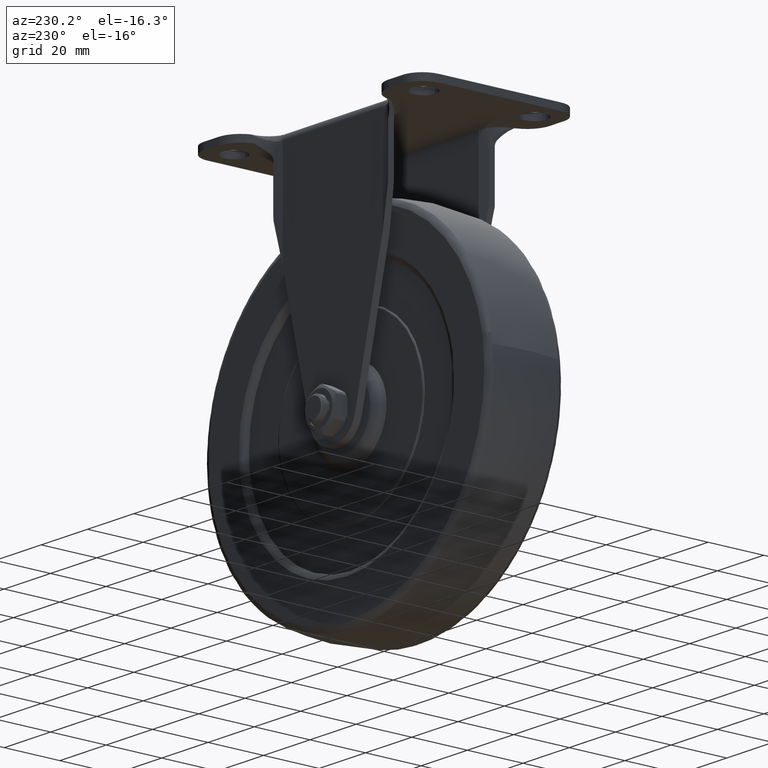
[diagram: clean part render]
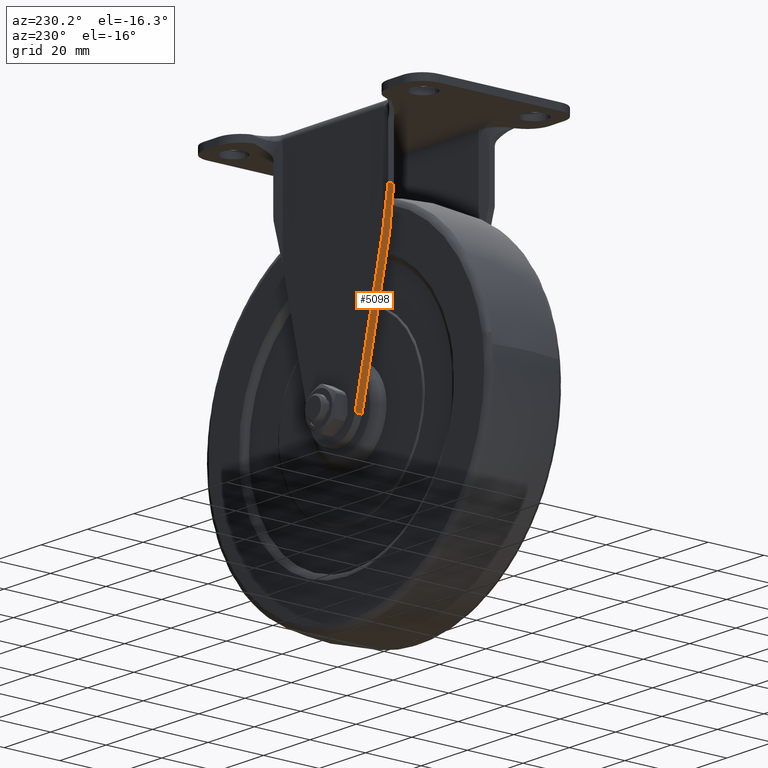
[diagram: same view with one face highlighted and labeled with its STEP entity id]
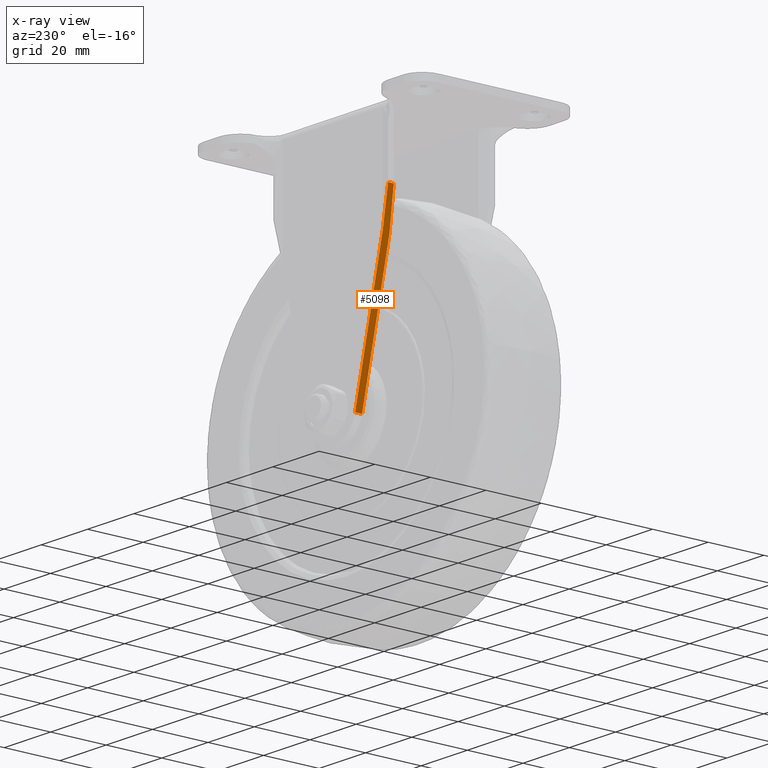
[diagram: x-ray of the same camera — body ghosted, the highlighted face saturated]
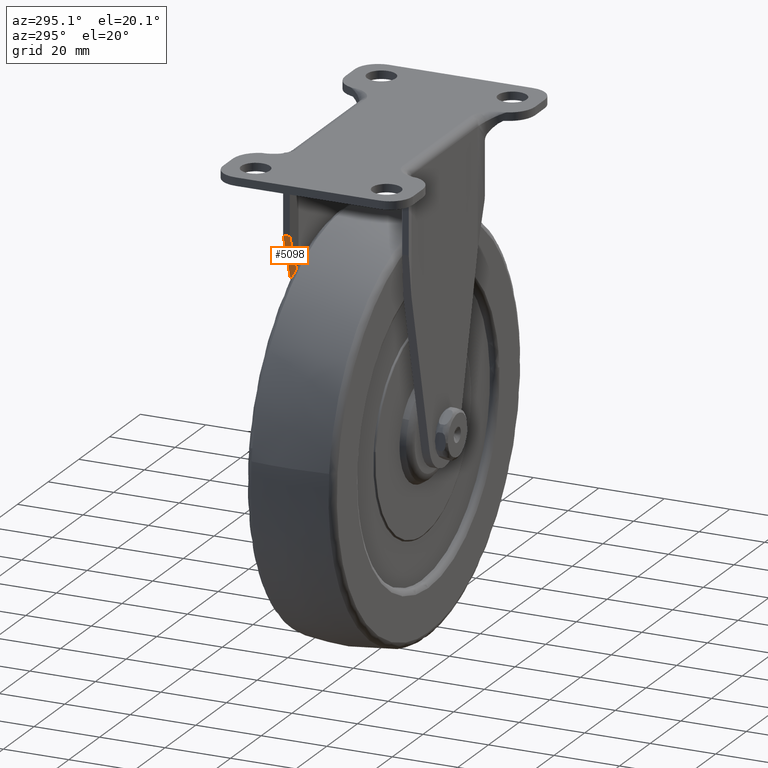
[diagram: same view with one face highlighted and labeled with its STEP entity id]
A machine part, auxiliary view. The second image highlights one B-rep face of the part: STEP entity #5098.
The next image is the same camera in x-ray: the body ghosted, the highlighted face saturated — about 0% of this face is hidden behind the body in this view.
A second angle (auxiliary view) of the same face is appended — the face is thin or edge-on in the first view.
In plain terms, the highlighted face is a freeform B-spline surface patch.
Its self-contained STEP definition (entity closure, byte-faithful):
#4885=CARTESIAN_POINT('',(-9.724018100333170,16.0,-2.333117239733630));
#4886=VERTEX_POINT('',#4885);
#4902=CARTESIAN_POINT('',(-9.724018100333170,18.499980000000001,-2.333117239733630));
#4903=VERTEX_POINT('',#4902);
#4904=CARTESIAN_POINT('',(-9.724018100333170,16.0,-2.333117239733630));
#4905=CARTESIAN_POINT('',(-9.724018100333170,18.499980000000001,-2.333117239733630));
#4906=QUASI_UNIFORM_CURVE('',1,(#4904,#4905),.UNSPECIFIED.,.F.,.U.);
#4907=EDGE_CURVE('',#4886,#4903,#4906,.T.);
#5026=CARTESIAN_POINT('',(-24.800000000000001,17.169658568433551,60.500000000000000));
#5027=VERTEX_POINT('',#5026);
#5034=CARTESIAN_POINT('',(-24.800000000000001,19.172218624724049,60.500000000000000));
#5035=VERTEX_POINT('',#5034);
#5041=CARTESIAN_POINT('',(-24.800000000000001,17.169658568433551,60.500000000000000));
#5042=CARTESIAN_POINT('',(-24.800000000000001,19.172218624724049,60.500000000000000));
#5043=QUASI_UNIFORM_CURVE('',1,(#5041,#5042),.UNSPECIFIED.,.F.,.U.);
#5044=EDGE_CURVE('',#5027,#5035,#5043,.T.);
#5049=CARTESIAN_POINT('',(-25.553046219500828,15.841547708510200,63.638513855722223));
#5050=CARTESIAN_POINT('',(-8.970972383965943,15.841547708510200,-5.471632998514821));
#5051=CARTESIAN_POINT('',(-25.553046219500828,19.330670547509879,63.638513855722223));
#5052=CARTESIAN_POINT('',(-8.970972383965943,19.330670547509879,-5.471632998514821));
#5053=B_SPLINE_SURFACE_WITH_KNOTS('',1,1,((#5049,#5051),(#5050,#5052)),.UNSPECIFIED.,.F.,.F.,.U.,(2,2),(2,2),(0.0,71.071636894765135),(0.0,3.489122838999684),.UNSPECIFIED.);
#5054=CARTESIAN_POINT('',(-21.590030418878950,18.499980000000001,47.121604892278498));
#5055=VERTEX_POINT('',#5054);
#5056=CARTESIAN_POINT('',(-24.800000000000001,19.172218624724049,60.500000000000000));
#5057=CARTESIAN_POINT('',(-23.265406442830820,18.499980087722506,54.104174394727970));
#5058=CARTESIAN_POINT('',(-21.590030418878950,18.499980000000001,47.121604892278498));
#5066=(BOUNDED_CURVE()B_SPLINE_CURVE(2,(#5056,#5057,#5058),.UNSPECIFIED.,.F.,.U.)CURVE()GEOMETRIC_REPRESENTATION_ITEM()QUASI_UNIFORM_CURVE()RATIONAL_B_SPLINE_CURVE((1.0,0.978767130863790,1.0))REPRESENTATION_ITEM(''));
#5067=EDGE_CURVE('',#5035,#5055,#5066,.T.);
#5068=ORIENTED_EDGE('',*,*,#5067,.T.);
#5069=CARTESIAN_POINT('',(-9.724018100333170,18.499980000000001,-2.333117239733630));
#5070=CARTESIAN_POINT('',(-21.590030418878950,18.499980000000001,47.121604892278498));
#5071=QUASI_UNIFORM_CURVE('',1,(#5069,#5070),.UNSPECIFIED.,.F.,.U.);
#5072=EDGE_CURVE('',#4903,#5055,#5071,.T.);
#5073=ORIENTED_EDGE('',*,*,#5072,.F.);
#5074=ORIENTED_EDGE('',*,*,#4907,.F.);
#5075=CARTESIAN_POINT('',(-21.590155530322349,16.0,47.122126327070497));
#5076=VERTEX_POINT('',#5075);
#5077=CARTESIAN_POINT('',(-9.724018100333170,16.0,-2.333117239733630));
#5078=CARTESIAN_POINT('',(-21.590155530322349,16.0,47.122126327070497));
#5079=QUASI_UNIFORM_CURVE('',1,(#5077,#5078),.UNSPECIFIED.,.F.,.U.);
#5080=EDGE_CURVE('',#4886,#5076,#5079,.T.);
#5081=ORIENTED_EDGE('',*,*,#5080,.T.);
#5082=CARTESIAN_POINT('',(-21.590155530322349,16.0,47.122126327070497));
#5083=CARTESIAN_POINT('',(-23.308011174954224,16.274912068488629,54.281740803064189));
#5084=CARTESIAN_POINT('',(-24.800000000000001,17.169658568433551,60.500000000000000));
#5092=(BOUNDED_CURVE()B_SPLINE_CURVE(2,(#5082,#5083,#5084),.UNSPECIFIED.,.F.,.U.)CURVE()GEOMETRIC_REPRESENTATION_ITEM()QUASI_UNIFORM_CURVE()RATIONAL_B_SPLINE_CURVE((1.0,0.981861135817105,1.0))REPRESENTATION_ITEM(''));
#5093=EDGE_CURVE('',#5076,#5027,#5092,.T.);
#5094=ORIENTED_EDGE('',*,*,#5093,.T.);
#5095=ORIENTED_EDGE('',*,*,#5044,.T.);
#5096=EDGE_LOOP('',(#5068,#5073,#5074,#5081,#5094,#5095));
#5097=FACE_OUTER_BOUND('',#5096,.T.);
#5098=ADVANCED_FACE('',(#5097),#5053,.F.);